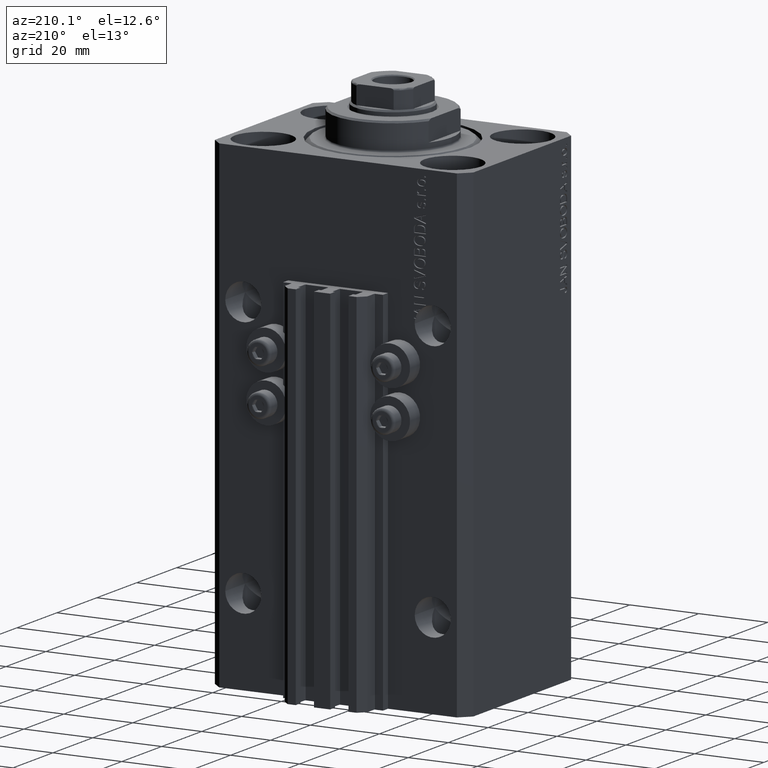
[diagram: clean part render]
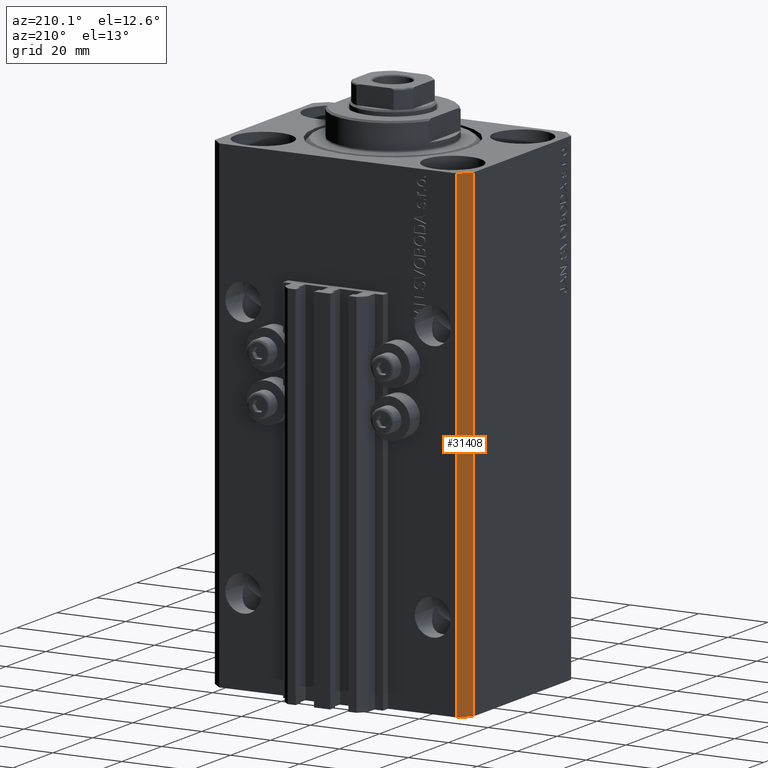
[diagram: same view with one face highlighted and labeled with its STEP entity id]
A machine part, auxiliary view. The second image highlights one B-rep face of the part: STEP entity #31408.
In plain terms, the highlighted planar face has unit normal (-0.7071, 0.7071, 0).
Its self-contained STEP definition (entity closure, byte-faithful):
#976 = ORIENTED_EDGE ( 'NONE', *, *, #25963, .T. ) ;
#1172 = VECTOR ( 'NONE', #12242, 1000.000000000000000 ) ;
#1557 = VERTEX_POINT ( 'NONE', #5279 ) ;
#2626 = CARTESIAN_POINT ( 'NONE',  ( -37.49999999999999289, 24.50000000000000000, -140.0000000000000000 ) ) ;
#4819 = LINE ( 'NONE', #16546, #1172 ) ;
#5279 = CARTESIAN_POINT ( 'NONE',  ( -34.49999999999999289, 27.50000000000000000, 0.000000000000000000 ) ) ;
#5391 = LINE ( 'NONE', #20001, #14601 ) ;
#11064 = VECTOR ( 'NONE', #45919, 1000.000000000000000 ) ;
#11579 = CARTESIAN_POINT ( 'NONE',  ( -37.49999999999999289, 24.50000000000000000, 0.000000000000000000 ) ) ;
#12242 = DIRECTION ( 'NONE',  ( -0.7071067811865471286, -0.7071067811865479058, 0.000000000000000000 ) ) ;
#12485 = CARTESIAN_POINT ( 'NONE',  ( -34.49999999999999289, 27.50000000000000000, -140.0000000000000000 ) ) ;
#12806 = EDGE_LOOP ( 'NONE', ( #24640, #19156, #976, #32686 ) ) ;
#13165 = DIRECTION ( 'NONE',  ( -0.7071067811865471286, -0.7071067811865479058, 0.000000000000000000 ) ) ;
#14601 = VECTOR ( 'NONE', #27187, 1000.000000000000000 ) ;
#16546 = CARTESIAN_POINT ( 'NONE',  ( -34.49999999999999289, 27.50000000000000000, -140.0000000000000000 ) ) ;
#16673 = CARTESIAN_POINT ( 'NONE',  ( -34.49999999999999289, 27.50000000000000000, 0.000000000000000000 ) ) ;
#19087 = AXIS2_PLACEMENT_3D ( 'NONE', #46005, #31124, #13165 ) ;
#19156 = ORIENTED_EDGE ( 'NONE', *, *, #34515, .F. ) ;
#20001 = CARTESIAN_POINT ( 'NONE',  ( -37.49999999999999289, 24.50000000000000000, -140.0000000000000000 ) ) ;
#21924 = VERTEX_POINT ( 'NONE', #11579 ) ;
#24640 = ORIENTED_EDGE ( 'NONE', *, *, #29056, .F. ) ;
#25963 = EDGE_CURVE ( 'NONE', #42626, #44826, #4819, .T. ) ;
#27187 = DIRECTION ( 'NONE',  ( 0.000000000000000000, 0.000000000000000000, 1.000000000000000000 ) ) ;
#27947 = LINE ( 'NONE', #42577, #45236 ) ;
#29056 = EDGE_CURVE ( 'NONE', #1557, #21924, #46618, .T. ) ;
#31124 = DIRECTION ( 'NONE',  ( -0.7071067811865479058, 0.7071067811865471286, 0.000000000000000000 ) ) ;
#31408 = ADVANCED_FACE ( 'NONE', ( #39274 ), #31833, .T. ) ;
#31833 = PLANE ( 'NONE',  #19087 ) ;
#32686 = ORIENTED_EDGE ( 'NONE', *, *, #34699, .T. ) ;
#34515 = EDGE_CURVE ( 'NONE', #42626, #1557, #27947, .T. ) ;
#34699 = EDGE_CURVE ( 'NONE', #44826, #21924, #5391, .T. ) ;
#38966 = DIRECTION ( 'NONE',  ( 0.000000000000000000, 0.000000000000000000, 1.000000000000000000 ) ) ;
#39274 = FACE_OUTER_BOUND ( 'NONE', #12806, .T. ) ;
#42577 = CARTESIAN_POINT ( 'NONE',  ( -34.49999999999999289, 27.50000000000000000, -140.0000000000000000 ) ) ;
#42626 = VERTEX_POINT ( 'NONE', #12485 ) ;
#44826 = VERTEX_POINT ( 'NONE', #2626 ) ;
#45236 = VECTOR ( 'NONE', #38966, 1000.000000000000000 ) ;
#45919 = DIRECTION ( 'NONE',  ( -0.7071067811865471286, -0.7071067811865479058, 0.000000000000000000 ) ) ;
#46005 = CARTESIAN_POINT ( 'NONE',  ( -34.49999999999999289, 27.50000000000000000, -140.0000000000000000 ) ) ;
#46618 = LINE ( 'NONE', #16673, #11064 ) ;